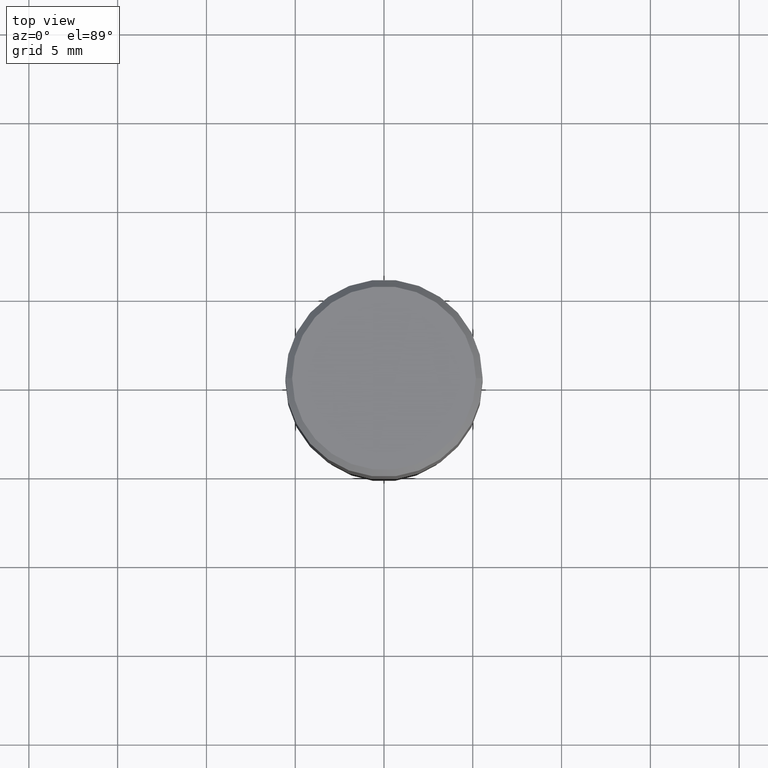
[diagram: clean part render]
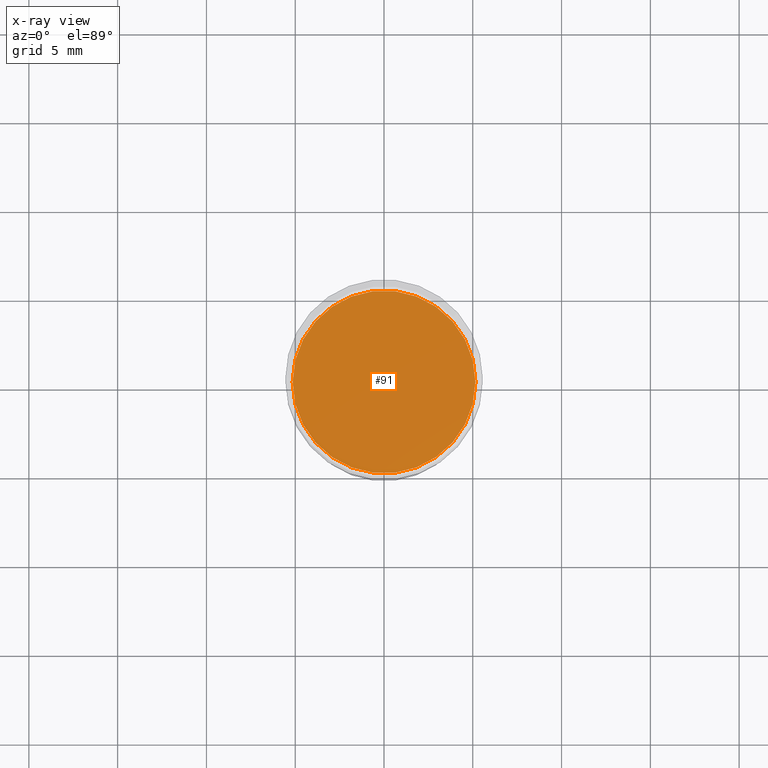
[diagram: x-ray — body ghosted, one internal face saturated and labeled with its STEP entity id]
A machine part, top view, then the same camera in x-ray: the body is ghosted and one INTERNAL B-rep face — a face not visible from any outside direction — is saturated and labeled: STEP entity #91.
In plain terms, the highlighted planar face has unit normal (-0, 0, 1).
Its self-contained STEP definition (entity closure, byte-faithful):
#23 = CARTESIAN_POINT ( 'NONE',  ( 1.222734403092568719E-29, -1.745740669421573186E-15, -0.5000000000000001110 ) ) ;
#32 = PLANE ( 'NONE',  #47 ) ;
#47 = AXIS2_PLACEMENT_3D ( 'NONE', #23, #62, #313 ) ;
#62 = DIRECTION ( 'NONE',  ( -2.438088387897960049E-29, 3.491481338843145188E-15, 1.000000000000000000 ) ) ;
#89 = CIRCLE ( 'NONE', #177, 0.2026000000000000023 ) ;
#91 = ADVANCED_FACE ( 'NONE', ( #432 ), #32, .F. ) ;
#171 = CARTESIAN_POINT ( 'NONE',  ( 1.222734403092568719E-29, -1.745740669421573186E-15, -0.5000000000000001110 ) ) ;
#177 = AXIS2_PLACEMENT_3D ( 'NONE', #328, #321, #405 ) ;
#206 = DIRECTION ( 'NONE',  ( 1.000000000000000000, -6.982962677686268288E-15, 0.000000000000000000 ) ) ;
#244 = ORIENTED_EDGE ( 'NONE', *, *, #307, .F. ) ;
#252 = VERTEX_POINT ( 'NONE', #271 ) ;
#256 = VERTEX_POINT ( 'NONE', #303 ) ;
#271 = CARTESIAN_POINT ( 'NONE',  ( 0.2026000000000000023, -3.160488907920811151E-15, -0.5000000000000001110 ) ) ;
#276 = EDGE_LOOP ( 'NONE', ( #244, #430 ) ) ;
#303 = CARTESIAN_POINT ( 'NONE',  ( -0.2026000000000000023, -3.035318595974993861E-16, -0.5000000000000001110 ) ) ;
#307 = EDGE_CURVE ( 'NONE', #252, #256, #369, .T. ) ;
#313 = DIRECTION ( 'NONE',  ( 1.000000000000000000, -6.982962677686265922E-15, 4.876176775795935793E-29 ) ) ;
#321 = DIRECTION ( 'NONE',  ( -2.445468806185136597E-29, 3.491481338843145583E-15, 1.000000000000000000 ) ) ;
#328 = CARTESIAN_POINT ( 'NONE',  ( 1.222734403092568719E-29, -1.745740669421573186E-15, -0.5000000000000001110 ) ) ;
#352 = DIRECTION ( 'NONE',  ( -2.445468806185136597E-29, 3.491481338843145583E-15, 1.000000000000000000 ) ) ;
#369 = CIRCLE ( 'NONE', #386, 0.2026000000000000023 ) ;
#386 = AXIS2_PLACEMENT_3D ( 'NONE', #171, #352, #206 ) ;
#405 = DIRECTION ( 'NONE',  ( 1.000000000000000000, -6.982962677686268288E-15, 0.000000000000000000 ) ) ;
#430 = ORIENTED_EDGE ( 'NONE', *, *, #459, .F. ) ;
#432 = FACE_OUTER_BOUND ( 'NONE', #276, .T. ) ;
#459 = EDGE_CURVE ( 'NONE', #256, #252, #89, .T. ) ;